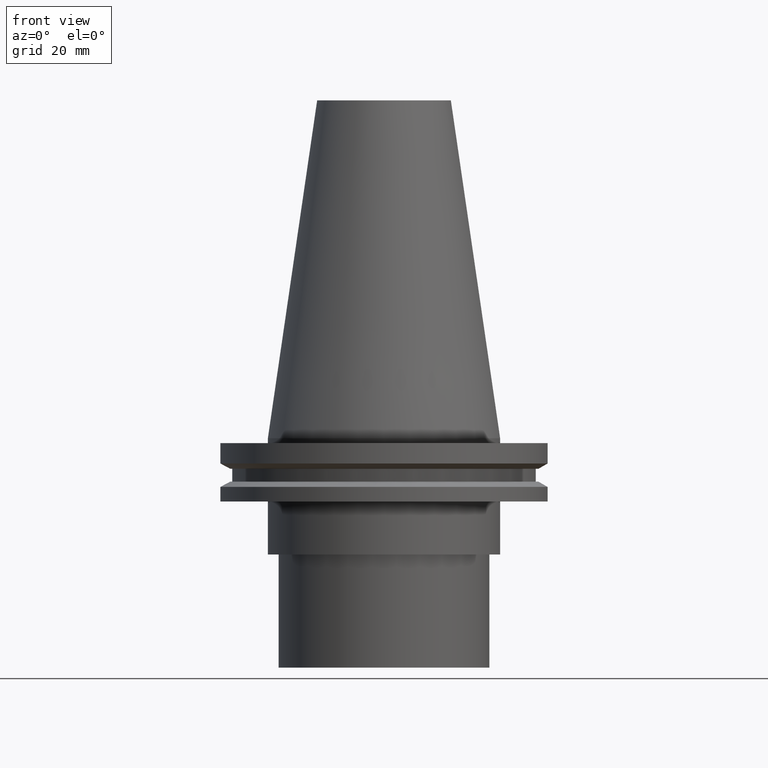
[diagram: clean part render]
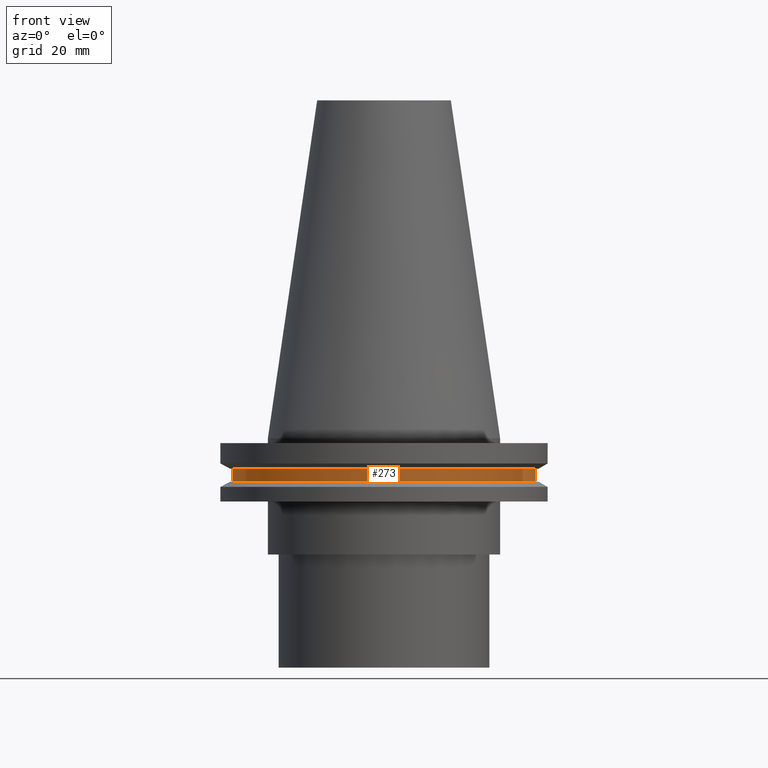
[diagram: same view with one face highlighted and labeled with its STEP entity id]
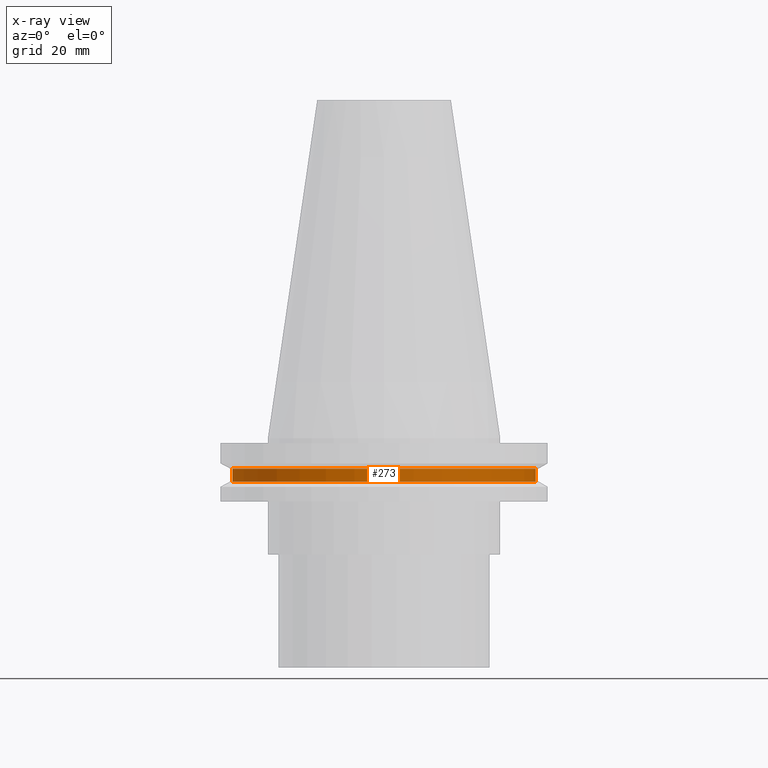
[diagram: x-ray of the same camera — body ghosted, the highlighted face saturated]
A machine part, front view. The second image highlights one B-rep face of the part: STEP entity #273.
The next image is the same camera in x-ray: the body ghosted, the highlighted face saturated — about 0% of this face is hidden behind the body in this view.
In plain terms, the highlighted cylindrical surface (bore or boss wall) has radius 45.645 mm, axis along (-0, -0, 1).
Its self-contained STEP definition (entity closure, byte-faithful):
#5 = DIRECTION ( 'NONE',  ( 1.000000000000000000, 0.000000000000000000, 0.000000000000000000 ) ) ;
#8 = CIRCLE ( 'NONE', #332, 45.64500000000000313 ) ;
#16 = CARTESIAN_POINT ( 'NONE',  ( 45.64500000000000313, 0.000000000000000000, -9.204999999999991189 ) ) ;
#27 = FACE_OUTER_BOUND ( 'NONE', #281, .T. ) ;
#37 = CARTESIAN_POINT ( 'NONE',  ( 0.000000000000000000, 0.000000000000000000, -9.204999999999991189 ) ) ;
#47 = CARTESIAN_POINT ( 'NONE',  ( 0.000000000000000000, 0.000000000000000000, -13.05499999999999794 ) ) ;
#48 = EDGE_LOOP ( 'NONE', ( #186 ) ) ;
#73 = DIRECTION ( 'NONE',  ( 1.000000000000000000, 0.000000000000000000, 0.000000000000000000 ) ) ;
#108 = VERTEX_POINT ( 'NONE', #387 ) ;
#113 = DIRECTION ( 'NONE',  ( -0.000000000000000000, -0.000000000000000000, 1.000000000000000000 ) ) ;
#143 = AXIS2_PLACEMENT_3D ( 'NONE', #47, #245, #5 ) ;
#158 = DIRECTION ( 'NONE',  ( -0.000000000000000000, -0.000000000000000000, 1.000000000000000000 ) ) ;
#173 = VERTEX_POINT ( 'NONE', #16 ) ;
#176 = CYLINDRICAL_SURFACE ( 'NONE', #342, 45.64500000000000313 ) ;
#186 = ORIENTED_EDGE ( 'NONE', *, *, #329, .T. ) ;
#238 = DIRECTION ( 'NONE',  ( 1.000000000000000000, 0.000000000000000000, 0.000000000000000000 ) ) ;
#245 = DIRECTION ( 'NONE',  ( -0.000000000000000000, -0.000000000000000000, 1.000000000000000000 ) ) ;
#273 = ADVANCED_FACE ( 'NONE', ( #27, #312 ), #176, .T. ) ;
#281 = EDGE_LOOP ( 'NONE', ( #365 ) ) ;
#309 = CIRCLE ( 'NONE', #143, 45.64500000000000313 ) ;
#312 = FACE_OUTER_BOUND ( 'NONE', #48, .T. ) ;
#329 = EDGE_CURVE ( 'NONE', #108, #108, #309, .T. ) ;
#332 = AXIS2_PLACEMENT_3D ( 'NONE', #37, #158, #73 ) ;
#342 = AXIS2_PLACEMENT_3D ( 'NONE', #362, #113, #238 ) ;
#347 = EDGE_CURVE ( 'NONE', #173, #173, #8, .T. ) ;
#362 = CARTESIAN_POINT ( 'NONE',  ( 0.000000000000000000, 0.000000000000000000, 101.5999999999999943 ) ) ;
#365 = ORIENTED_EDGE ( 'NONE', *, *, #347, .F. ) ;
#387 = CARTESIAN_POINT ( 'NONE',  ( 45.64500000000000313, 0.000000000000000000, -13.05499999999999794 ) ) ;